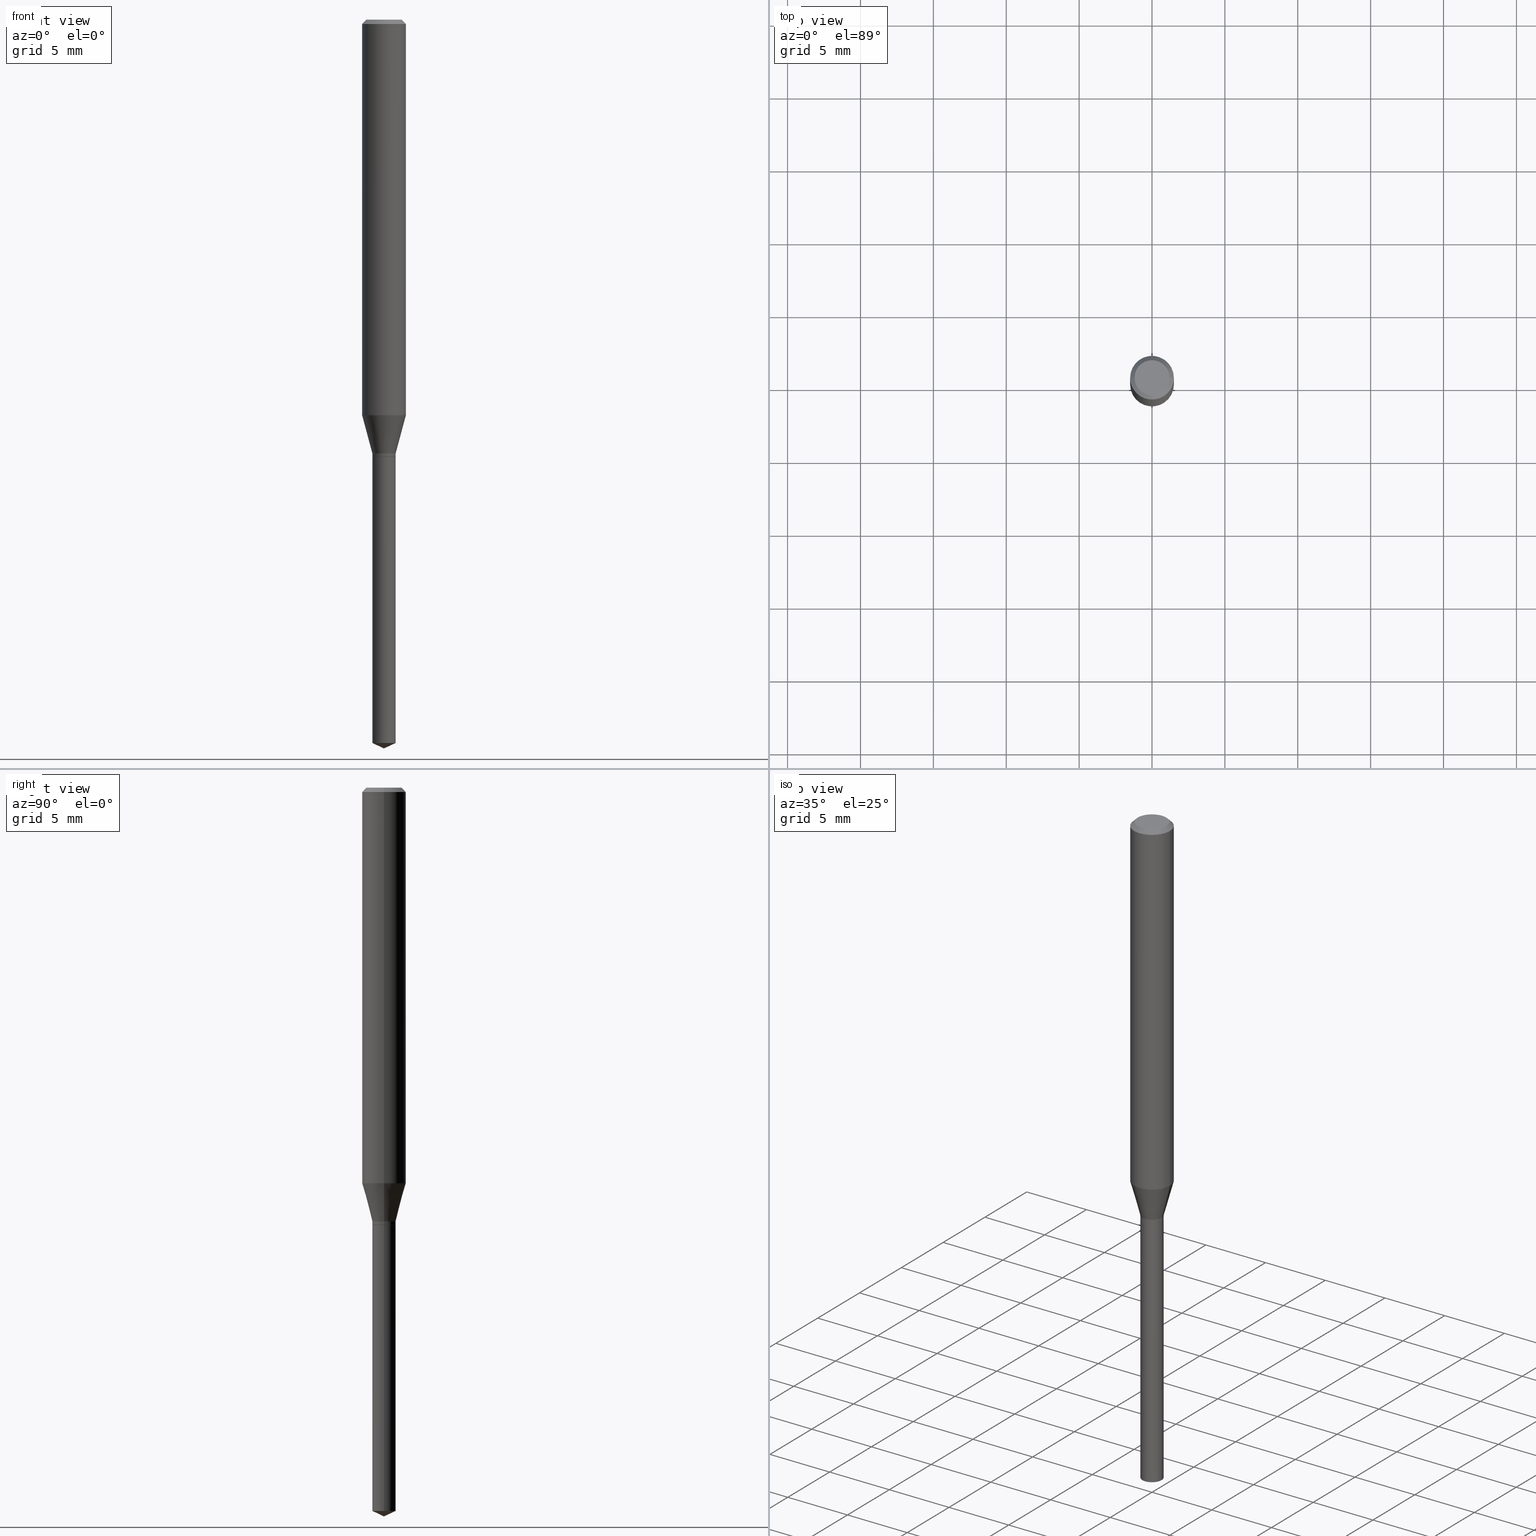
[diagram: canonical four-view strip — front | top / right | iso, engineering-drawing reading convention]
A machine part, canonical four-view strip (front | top / right | iso — engineering-drawing reading convention). The complete STEP part file that produces these views, byte-faithful:
ISO-10303-21;
HEADER;
FILE_DESCRIPTION (( 'STEP AP203' ),
    '1' );
FILE_NAME ('07897.STEP',
    '2024-04-24T05:38:02',
    ( '' ),
    ( '' ),
    'SwSTEP 2.0',
    'SolidWorks 2023',
    '' );
FILE_SCHEMA (( 'CONFIG_CONTROL_DESIGN' ));
ENDSEC;

DATA;
#1 = APPLICATION_CONTEXT ( 'configuration controlled 3d designs of mechanical parts and assemblies' ) ;
#2 = CARTESIAN_POINT ( 'NONE',  ( 0.05905000000000011628, -4.143976355286858032E-15, -1.068782000251477182 ) ) ;
#3 =( NAMED_UNIT ( * ) PLANE_ANGLE_UNIT ( ) SI_UNIT ( $, .RADIAN. ) );
#4 = DIRECTION ( 'NONE',  ( -2.445468806185136597E-29, 3.491481338843145583E-15, 1.000000000000000000 ) ) ;
#5 = LENGTH_MEASURE_WITH_UNIT ( LENGTH_MEASURE( 0.02539999999999999897 ), #284 );
#6 = ORIENTED_EDGE ( 'NONE', *, *, #53, .F. ) ;
#7 = DIRECTION ( 'NONE',  ( 1.000000000000000000, -6.982962677686270655E-15, 0.000000000000000000 ) ) ;
#8 = CLOSED_SHELL ( 'NONE', ( #138, #463, #12, #231, #189, #472, #269, #146, #275, #460, #445, #164 ) ) ;
#9 = APPROVAL_DATE_TIME ( #239, #309 ) ;
#10 = VERTEX_POINT ( 'NONE', #104 ) ;
#11 = CONICAL_SURFACE ( 'NONE', #74, 0.03150000000000000716, 0.2617993877991501295 ) ;
#12 = ADVANCED_FACE ( 'NONE', ( #293 ), #52, .T. ) ;
#13 = DIRECTION ( 'NONE',  ( 1.000000000000000000, -6.982962677686269077E-15, 0.000000000000000000 ) ) ;
#14 = APPROVAL_ROLE ( '' ) ;
#15 = ORIENTED_EDGE ( 'NONE', *, *, #384, .F. ) ;
#16 = DIRECTION ( 'NONE',  ( 1.000000000000000000, -6.982962677686266711E-15, 0.000000000000000000 ) ) ;
#17 = VERTEX_POINT ( 'NONE', #446 ) ;
#18 = CC_DESIGN_APPROVAL ( #309, ( #401 ) ) ;
#19 = DIRECTION ( 'NONE',  ( -2.445468806185136597E-29, 3.491481338843145583E-15, 1.000000000000000000 ) ) ;
#20 = COORDINATED_UNIVERSAL_TIME_OFFSET ( 5, 0, .BEHIND. ) ;
#21 = CARTESIAN_POINT ( 'NONE',  ( 0.03099999999999999978, -4.340260452315913355E-15, -1.181099999999999817 ) ) ;
#22 = CARTESIAN_POINT ( 'NONE',  ( -9.146439411113230710E-28, 1.305869142145323662E-13, 37.40157874015748263 ) ) ;
#23 = APPROVAL_DATE_TIME ( #440, #184 ) ;
#24 = FACE_OUTER_BOUND ( 'NONE', #86, .T. ) ;
#25 = PERSON_AND_ORGANIZATION_ROLE ( 'classification_officer' ) ;
#26 = CARTESIAN_POINT ( 'NONE',  ( -0.05904999999999999832, -1.466857916424269744E-15, -0.01181000000000007044 ) ) ;
#27 = VECTOR ( 'NONE', #158, 39.37007874015748854 ) ;
#28 = DATE_AND_TIME ( #258, #341 ) ;
#29 = ORIENTED_EDGE ( 'NONE', *, *, #279, .T. ) ;
#30 = VERTEX_POINT ( 'NONE', #140 ) ;
#31 = CIRCLE ( 'NONE', #486, 0.03150000000000000716 ) ;
#32 = ADVANCED_FACE ( 'NONE', ( #411 ), #332, .T. ) ;
#33 = FACE_OUTER_BOUND ( 'NONE', #467, .T. ) ;
#34 = AXIS2_PLACEMENT_3D ( 'NONE', #207, #292, #266 ) ;
#35 = DIRECTION ( 'NONE',  ( 1.000000000000000000, -6.982962677686270655E-15, 0.000000000000000000 ) ) ;
#36 = CONICAL_SURFACE ( 'NONE', #333, 84.42940631927592676, 1.134464013796323112 ) ;
#37 = ORIENTED_EDGE ( 'NONE', *, *, #448, .F. ) ;
#38 = EDGE_CURVE ( 'NONE', #483, #240, #469, .T. ) ;
#39 = EDGE_LOOP ( 'NONE', ( #75, #55 ) ) ;
#40 = DIRECTION ( 'NONE',  ( -2.445468806185136597E-29, 3.491481338843145583E-15, 1.000000000000000000 ) ) ;
#41 = EDGE_LOOP ( 'NONE', ( #464, #431, #427, #103 ) ) ;
#42 = DIRECTION ( 'NONE',  ( -2.445468806185136877E-29, 3.491481338843145188E-15, 1.000000000000000000 ) ) ;
#43 = CALENDAR_DATE ( 2024, 24, 4 ) ;
#44 = EDGE_LOOP ( 'NONE', ( #261, #99 ) ) ;
#45 = AXIS2_PLACEMENT_3D ( 'NONE', #120, #278, #436 ) ;
#46 = DIRECTION ( 'NONE',  ( -2.445468806185136597E-29, 3.491481338843145583E-15, 1.000000000000000000 ) ) ;
#47 = ORIENTED_EDGE ( 'NONE', *, *, #392, .F. ) ;
#48 = DIRECTION ( 'NONE',  ( 0.7071067811865453523, -7.319954787623248157E-15, -0.7071067811865496822 ) ) ;
#49 = DIRECTION ( 'NONE',  ( 1.000000000000000000, -6.982962677686270655E-15, 0.000000000000000000 ) ) ;
#50 = ADVANCED_FACE ( 'NONE', ( #24 ), #36, .T. ) ;
#51 = CIRCLE ( 'NONE', #114, 0.03150000000000000022 ) ;
#52 = CYLINDRICAL_SURFACE ( 'NONE', #131, 0.05905000000000006771 ) ;
#53 = EDGE_CURVE ( 'NONE', #305, #444, #136, .T. ) ;
#54 = CARTESIAN_POINT ( 'NONE',  ( 0.000000000000000000, 0.000000000000000000, 0.000000000000000000 ) ) ;
#55 = ORIENTED_EDGE ( 'NONE', *, *, #225, .F. ) ;
#56 = COORDINATED_UNIVERSAL_TIME_OFFSET ( 5, 0, .BEHIND. ) ;
#57 = DIRECTION ( 'NONE',  ( -2.438088387897960049E-29, 3.491481338843145188E-15, 1.000000000000000000 ) ) ;
#58 = EDGE_LOOP ( 'NONE', ( #203, #111 ) ) ;
#59 = PERSON_AND_ORGANIZATION_ROLE ( 'creator' ) ;
#60 = FACE_OUTER_BOUND ( 'NONE', #44, .T. ) ;
#61 = ORIENTED_EDGE ( 'NONE', *, *, #53, .T. ) ;
#62 = AXIS2_PLACEMENT_3D ( 'NONE', #452, #386, #383 ) ;
#63 = FACE_OUTER_BOUND ( 'NONE', #473, .T. ) ;
#64 = CARTESIAN_POINT ( 'NONE',  ( -0.03150000000000000716, -3.866798574824197516E-15, -1.171599999999999975 ) ) ;
#65 = DIRECTION ( 'NONE',  ( -2.445468806185136597E-29, 3.491481338843145583E-15, 1.000000000000000000 ) ) ;
#66 = EDGE_CURVE ( 'NONE', #400, #483, #130, .T. ) ;
#67 = VECTOR ( 'NONE', #42, 39.37007874015748143 ) ;
#68 = ORIENTED_EDGE ( 'NONE', *, *, #70, .T. ) ;
#69 = DIRECTION ( 'NONE',  ( 1.000000000000000000, -6.982962677686266711E-15, 4.876176775795936353E-29 ) ) ;
#70 = EDGE_CURVE ( 'NONE', #119, #305, #387, .T. ) ;
#71 = CARTESIAN_POINT ( 'NONE',  ( -0.04724000000000000421, 3.504923541997677355E-16, -3.380025165670481712E-19 ) ) ;
#72 = PRODUCT_DEFINITION_FORMATION_WITH_SPECIFIED_SOURCE ( 'ANY', '', #227, .NOT_KNOWN. ) ;
#73 = DIRECTION ( 'NONE',  ( 1.000000000000000000, -6.982962677686266711E-15, 4.876185090822587894E-29 ) ) ;
#74 = AXIS2_PLACEMENT_3D ( 'NONE', #395, #19, #161 ) ;
#75 = ORIENTED_EDGE ( 'NONE', *, *, #109, .F. ) ;
#76 = DIRECTION ( 'NONE',  ( -2.445468806185136597E-29, 3.491481338843145583E-15, 1.000000000000000000 ) ) ;
#77 = EDGE_CURVE ( 'NONE', #297, #400, #414, .T. ) ;
#78 = EDGE_LOOP ( 'NONE', ( #324, #396, #488 ) ) ;
#79 = COORDINATED_UNIVERSAL_TIME_OFFSET ( 5, 0, .BEHIND. ) ;
#80 = EDGE_LOOP ( 'NONE', ( #435, #354, #336, #15 ) ) ;
#81 = CARTESIAN_POINT ( 'NONE',  ( 2.888098660104663766E-31, -4.123439461173779647E-17, -0.01181000000000007044 ) ) ;
#82 = CONICAL_SURFACE ( 'NONE', #94, 0.05904999999999999832, 0.7853981633974452814 ) ;
#83 = DATE_TIME_ROLE ( 'creation_date' ) ;
#84 = EDGE_LOOP ( 'NONE', ( #393, #201, #29, #47 ) ) ;
#85 = DIRECTION ( 'NONE',  ( 1.000000000000000000, -6.982962677686270655E-15, 0.000000000000000000 ) ) ;
#86 = EDGE_LOOP ( 'NONE', ( #123, #160, #285 ) ) ;
#87 = AXIS2_PLACEMENT_3D ( 'NONE', #432, #40, #85 ) ;
#88 = DIRECTION ( 'NONE',  ( 2.445468806185136597E-29, -3.491481338843145583E-15, -1.000000000000000000 ) ) ;
#89 = UNCERTAINTY_MEASURE_WITH_UNIT (LENGTH_MEASURE( 1.000000000000000082E-05 ), #202, 'distance_accuracy_value', 'NONE');
#90 = VERTEX_POINT ( 'NONE', #331 ) ;
#91 = EDGE_CURVE ( 'NONE', #314, #121, #232, .T. ) ;
#92 = CARTESIAN_POINT ( 'NONE',  ( 4.777984608764188742E-29, -6.821695724184587194E-15, -1.953811308768117927 ) ) ;
#93 = PERSON_AND_ORGANIZATION ( #175, #322 ) ;
#94 = AXIS2_PLACEMENT_3D ( 'NONE', #441, #97, #413 ) ;
#95 = DIRECTION ( 'NONE',  ( -0.9063077870366536004, 7.915267918739013053E-15, 0.4226182617406913367 ) ) ;
#96 = AXIS2_PLACEMENT_3D ( 'NONE', #415, #419, #69 ) ;
#97 = DIRECTION ( 'NONE',  ( 2.445468806185136597E-29, -3.491481338843145583E-15, -1.000000000000000000 ) ) ;
#98 = VECTOR ( 'NONE', #224, 39.37007874015748854 ) ;
#99 = ORIENTED_EDGE ( 'NONE', *, *, #384, .T. ) ;
#100 = ORIENTED_EDGE ( 'NONE', *, *, #162, .T. ) ;
#101 = VERTEX_POINT ( 'NONE', #183 ) ;
#102 = PLANE ( 'NONE',  #34 ) ;
#103 = ORIENTED_EDGE ( 'NONE', *, *, #38, .T. ) ;
#104 = CARTESIAN_POINT ( 'NONE',  ( -0.03150000000000000022, -5.248921204981680958E-15, -1.181099999999999817 ) ) ;
#105 = FACE_OUTER_BOUND ( 'NONE', #358, .T. ) ;
#106 = AXIS2_PLACEMENT_3D ( 'NONE', #54, #208, #177 ) ;
#107 = VECTOR ( 'NONE', #165, 39.37007874015747433 ) ;
#108 = AXIS2_PLACEMENT_3D ( 'NONE', #470, #325, #49 ) ;
#109 = EDGE_CURVE ( 'NONE', #318, #101, #485, .T. ) ;
#110 = MANIFOLD_SOLID_BREP ( 'Body-Move/Copy2[2]', #8 ) ;
#111 = ORIENTED_EDGE ( 'NONE', *, *, #91, .T. ) ;
#112 = CONICAL_SURFACE ( 'NONE', #447, 84.42940631927592676, 1.134464013796323112 ) ;
#113 = PERSON_AND_ORGANIZATION ( #175, #322 ) ;
#114 = AXIS2_PLACEMENT_3D ( 'NONE', #92, #192, #359 ) ;
#115 = CALENDAR_DATE ( 2024, 24, 4 ) ;
#116 = ORIENTED_EDGE ( 'NONE', *, *, #364, .T. ) ;
#117 = CARTESIAN_POINT ( 'NONE',  ( -0.03099999999999999978, -3.903520361222007771E-15, -1.181099999999999817 ) ) ;
#118 = PERSON_AND_ORGANIZATION_ROLE ( 'creator' ) ;
#119 = VERTEX_POINT ( 'NONE', #420 ) ;
#120 = CARTESIAN_POINT ( 'NONE',  ( 2.613673042227141951E-29, -3.731632409169482323E-15, -1.068782000251477182 ) ) ;
#121 = VERTEX_POINT ( 'NONE', #71 ) ;
#122 = DIRECTION ( 'NONE',  ( -1.000000000000000000, 6.982962677686266711E-15, 0.000000000000000000 ) ) ;
#123 = ORIENTED_EDGE ( 'NONE', *, *, #479, .F. ) ;
#124 = CONICAL_SURFACE ( 'NONE', #458, 0.05904999999999999832, 0.7853981633974452814 ) ;
#125 = LINE ( 'NONE', #205, #67 ) ;
#126 = CC_DESIGN_PERSON_AND_ORGANIZATION_ASSIGNMENT ( #173, #59, ( #72 ) ) ;
#127 = DIRECTION ( 'NONE',  ( -2.445468806185136597E-29, 3.491481338843145583E-15, 1.000000000000000000 ) ) ;
#128 = PERSON_AND_ORGANIZATION ( #175, #322 ) ;
#129 = APPROVAL_PERSON_ORGANIZATION ( #243, #370, #14 ) ;
#130 = LINE ( 'NONE', #137, #294 ) ;
#131 = AXIS2_PLACEMENT_3D ( 'NONE', #209, #372, #366 ) ;
#132 = FACE_OUTER_BOUND ( 'NONE', #84, .T. ) ;
#133 = VECTOR ( 'NONE', #241, 39.37007874015748854 ) ;
#134 = CC_DESIGN_DATE_AND_TIME_ASSIGNMENT ( #169, #481, ( #422 ) ) ;
#135 = DIRECTION ( 'NONE',  ( -2.445468806185136877E-29, 3.491481338843145188E-15, 1.000000000000000000 ) ) ;
#136 = LINE ( 'NONE', #484, #326 ) ;
#137 = CARTESIAN_POINT ( 'NONE',  ( -0.05905000000000006771, 4.195754854663396409E-16, -2.904631170795525045E-30 ) ) ;
#138 = ADVANCED_FACE ( 'NONE', ( #229 ), #424, .T. ) ;
#139 = AXIS2_PLACEMENT_3D ( 'NONE', #475, #477, #213 ) ;
#140 = CARTESIAN_POINT ( 'NONE',  ( 0.03150000000000000022, -4.343751933654756363E-15, -1.181099999999999817 ) ) ;
#141 = CARTESIAN_POINT ( 'NONE',  ( 2.888343206985264877E-29, -4.123788609307639024E-15, -1.181099999999999817 ) ) ;
#142 = LOCAL_TIME ( 1, 38, 2.000000000000000000, #280 ) ;
#143 = ORIENTED_EDGE ( 'NONE', *, *, #199, .F. ) ;
#144 = LINE ( 'NONE', #456, #216 ) ;
#145 = CARTESIAN_POINT ( 'NONE',  ( 0.03099999999999999978, -4.340260452315913355E-15, -1.181099999999999817 ) ) ;
#146 = ADVANCED_FACE ( 'NONE', ( #270 ), #226, .T. ) ;
#147 = EDGE_CURVE ( 'NONE', #153, #400, #398, .T. ) ;
#148 = PERSON_AND_ORGANIZATION ( #175, #322 ) ;
#149 = ORIENTED_EDGE ( 'NONE', *, *, #279, .F. ) ;
#150 = CARTESIAN_POINT ( 'NONE',  ( 0.05904999999999999832, -4.535783407291118600E-16, -0.01181000000000007044 ) ) ;
#151 = AXIS2_PLACEMENT_3D ( 'NONE', #327, #46, #426 ) ;
#152 = PERSON_AND_ORGANIZATION ( #175, #322 ) ;
#153 = VERTEX_POINT ( 'NONE', #2 ) ;
#154 = CC_DESIGN_PERSON_AND_ORGANIZATION_ASSIGNMENT ( #334, #214, ( #72 ) ) ;
#155 = CARTESIAN_POINT ( 'NONE',  ( 2.888343206985264877E-29, -4.123788609307639024E-15, -1.181099999999999817 ) ) ;
#156 =( NAMED_UNIT ( * ) SI_UNIT ( $, .STERADIAN. ) SOLID_ANGLE_UNIT ( ) );
#157 = ORIENTED_EDGE ( 'NONE', *, *, #290, .F. ) ;
#158 = DIRECTION ( 'NONE',  ( 0.9063077870366536004, -4.853149677051433221E-15, 0.4226182617406913367 ) ) ;
#159 = CC_DESIGN_PERSON_AND_ORGANIZATION_ASSIGNMENT ( #113, #193, ( #227 ) ) ;
#160 = ORIENTED_EDGE ( 'NONE', *, *, #298, .T. ) ;
#161 = DIRECTION ( 'NONE',  ( 1.000000000000000000, -6.982962677686269077E-15, 0.000000000000000000 ) ) ;
#162 = EDGE_CURVE ( 'NONE', #444, #297, #399, .T. ) ;
#163 = CARTESIAN_POINT ( 'NONE',  ( 2.865111253326506133E-29, -4.090619536588628879E-15, -1.171599999999999975 ) ) ;
#164 = ADVANCED_FACE ( 'NONE', ( #105 ), #276, .T. ) ;
#165 = DIRECTION ( 'NONE',  ( -0.2588190451025214611, 5.211531920934551042E-15, 0.9659258262890682012 ) ) ;
#166 = FACE_OUTER_BOUND ( 'NONE', #39, .T. ) ;
#167 = VERTEX_POINT ( 'NONE', #388 ) ;
#168 = DESIGN_CONTEXT ( 'detailed design', #421, 'design' ) ;
#169 = DATE_AND_TIME ( #471, #223 ) ;
#170 = DIRECTION ( 'NONE',  ( 2.438088387897960049E-29, -3.491481338843145188E-15, -1.000000000000000000 ) ) ;
#171 = AXIS2_PLACEMENT_3D ( 'NONE', #344, #311, #35 ) ;
#172 = DIRECTION ( 'NONE',  ( -2.445468806185136597E-29, 3.491481338843145583E-15, 1.000000000000000000 ) ) ;
#173 = PERSON_AND_ORGANIZATION ( #175, #322 ) ;
#174 = LINE ( 'NONE', #474, #262 ) ;
#175 = PERSON ( 'UNSPECIFIED', 'UNSPECIFIED', 'UNSPECIFIED', ('UNSPECIFIED'), ('UNSPECIFIED'), ('UNSPECIFIED') ) ;
#176 = ORIENTED_EDGE ( 'NONE', *, *, #66, .F. ) ;
#177 = DIRECTION ( 'NONE',  ( 1.000000000000000000, -6.982962677686266711E-15, 4.876176775795936353E-29 ) ) ;
#178 = CARTESIAN_POINT ( 'NONE',  ( 2.888098660104663766E-31, -4.123439461173779647E-17, -0.01181000000000007044 ) ) ;
#179 = EDGE_CURVE ( 'NONE', #318, #305, #454, .T. ) ;
#180 = CIRCLE ( 'NONE', #363, 0.05904999999999999832 ) ;
#181 = LINE ( 'NONE', #228, #295 ) ;
#182 = EDGE_CURVE ( 'NONE', #444, #153, #144, .T. ) ;
#183 = CARTESIAN_POINT ( 'NONE',  ( -0.03099999999999999978, -3.900871134047896570E-15, -1.181099999999999817 ) ) ;
#184 = APPROVAL ( #253, 'UNSPECIFIED' ) ;
#185 = FACE_OUTER_BOUND ( 'NONE', #80, .T. ) ;
#186 = APPROVAL_PERSON_ORGANIZATION ( #93, #184, #210 ) ;
#187 = DIRECTION ( 'NONE',  ( -2.445468806185136597E-29, 3.491481338843145583E-15, 1.000000000000000000 ) ) ;
#188 = DIRECTION ( 'NONE',  ( 0.2588190451025214611, 1.565188264969621573E-15, 0.9659258262890682012 ) ) ;
#189 = ADVANCED_FACE ( 'NONE', ( #33 ), #350, .T. ) ;
#190 = APPLICATION_PROTOCOL_DEFINITION ( 'international standard', 'config_control_design', 1994, #1 ) ;
#191 = ORIENTED_EDGE ( 'NONE', *, *, #222, .F. ) ;
#192 = DIRECTION ( 'NONE',  ( -2.445468806185136597E-29, 3.491481338843145583E-15, 1.000000000000000000 ) ) ;
#193 = PERSON_AND_ORGANIZATION_ROLE ( 'design_owner' ) ;
#194 = ORIENTED_EDGE ( 'NONE', *, *, #147, .T. ) ;
#195 = CARTESIAN_POINT ( 'NONE',  ( -0.03150000000000000716, -3.882510240848991048E-15, -1.171599999999999975 ) ) ;
#196 = AXIS2_PLACEMENT_3D ( 'NONE', #375, #170, #302 ) ;
#197 = DIRECTION ( 'NONE',  ( 1.000000000000000000, 0.000000000000000000, 0.000000000000000000 ) ) ;
#198 = ORIENTED_EDGE ( 'NONE', *, *, #448, .T. ) ;
#199 = EDGE_CURVE ( 'NONE', #119, #297, #181, .T. ) ;
#200 = DIRECTION ( 'NONE',  ( -2.445468806185136597E-29, 3.491481338843145583E-15, 1.000000000000000000 ) ) ;
#201 = ORIENTED_EDGE ( 'NONE', *, *, #242, .T. ) ;
#202 =( CONVERSION_BASED_UNIT ( 'INCH', #5 ) LENGTH_UNIT ( ) NAMED_UNIT ( #257 ) );
#203 = ORIENTED_EDGE ( 'NONE', *, *, #487, .T. ) ;
#204 = DIRECTION ( 'NONE',  ( -2.445468806185136597E-29, 3.491481338843145583E-15, 1.000000000000000000 ) ) ;
#205 = CARTESIAN_POINT ( 'NONE',  ( 0.03150000000000000022, -4.343751933654756363E-15, -1.181099999999999817 ) ) ;
#206 = VECTOR ( 'NONE', #362, 39.37007874015748143 ) ;
#207 = CARTESIAN_POINT ( 'NONE',  ( 4.132873053354867254E-48, -5.900647395337818946E-34, -1.690012582823346072E-19 ) ) ;
#208 = DIRECTION ( 'NONE',  ( -2.445468806185136597E-29, 3.491481338843145583E-15, 1.000000000000000000 ) ) ;
#209 = CARTESIAN_POINT ( 'NONE',  ( 0.000000000000000000, 0.000000000000000000, 0.000000000000000000 ) ) ;
#210 = APPROVAL_ROLE ( '' ) ;
#211 = CIRCLE ( 'NONE', #404, 0.04724000000000000421 ) ;
#212 = ADVANCED_FACE ( 'NONE', ( #185 ), #346, .T. ) ;
#213 = DIRECTION ( 'NONE',  ( 1.000000000000000000, -6.982962677686270655E-15, 0.000000000000000000 ) ) ;
#214 = PERSON_AND_ORGANIZATION_ROLE ( 'design_supplier' ) ;
#215 = PLANE ( 'NONE',  #271 ) ;
#216 = VECTOR ( 'NONE', #188, 39.37007874015747433 ) ;
#217 = CC_DESIGN_PERSON_AND_ORGANIZATION_ASSIGNMENT ( #152, #118, ( #401 ) ) ;
#218 = DIRECTION ( 'NONE',  ( -2.445468806185136877E-29, 3.491481338843145188E-15, 1.000000000000000000 ) ) ;
#219 = PRODUCT_DEFINITION_SHAPE ( 'NONE', 'NONE',  #401 ) ;
#220 = ORIENTED_EDGE ( 'NONE', *, *, #377, .T. ) ;
#221 = PRODUCT_RELATED_PRODUCT_CATEGORY ( 'detail', '', ( #227 ) ) ;
#222 = EDGE_CURVE ( 'NONE', #400, #153, #373, .T. ) ;
#223 = LOCAL_TIME ( 1, 38, 2.000000000000000000, #20 ) ;
#224 = DIRECTION ( 'NONE',  ( 0.7071067811864326647, -2.468850131081054837E-15, 0.7071067811866621478 ) ) ;
#225 = EDGE_CURVE ( 'NONE', #101, #318, #443, .T. ) ;
#226 = CYLINDRICAL_SURFACE ( 'NONE', #96, 0.05905000000000006771 ) ;
#227 = PRODUCT ( '07897', '07897', '', ( #323 ) ) ;
#228 = CARTESIAN_POINT ( 'NONE',  ( -0.03150000000000000716, 2.238209617644316094E-16, -1.549464553430295852E-30 ) ) ;
#229 = FACE_OUTER_BOUND ( 'NONE', #237, .T. ) ;
#230 = DIRECTION ( 'NONE',  ( -2.445468806185136597E-29, 3.491481338843145583E-15, 1.000000000000000000 ) ) ;
#231 = ADVANCED_FACE ( 'NONE', ( #459 ), #381, .T. ) ;
#232 = CIRCLE ( 'NONE', #304, 0.04724000000000000421 ) ;
#233 = ORIENTED_EDGE ( 'NONE', *, *, #182, .F. ) ;
#234 = APPROVAL_STATUS ( 'not_yet_approved' ) ;
#235 = ORIENTED_EDGE ( 'NONE', *, *, #179, .T. ) ;
#236 = LINE ( 'NONE', #403, #206 ) ;
#237 = EDGE_LOOP ( 'NONE', ( #390, #288, #360, #249 ) ) ;
#238 = EDGE_CURVE ( 'NONE', #167, #90, #51, .T. ) ;
#239 = DATE_AND_TIME ( #115, #453 ) ;
#240 = VERTEX_POINT ( 'NONE', #150 ) ;
#241 = DIRECTION ( 'NONE',  ( -0.7071067811864326647, 7.493145998869937642E-15, 0.7071067811866621478 ) ) ;
#242 = EDGE_CURVE ( 'NONE', #314, #240, #352, .T. ) ;
#243 = PERSON_AND_ORGANIZATION ( #175, #322 ) ;
#244 = ORIENTED_EDGE ( 'NONE', *, *, #77, .T. ) ;
#245 = LINE ( 'NONE', #397, #418 ) ;
#246 = AXIS2_PLACEMENT_3D ( 'NONE', #155, #286, #7 ) ;
#247 = ORIENTED_EDGE ( 'NONE', *, *, #70, .F. ) ;
#248 = DIRECTION ( 'NONE',  ( -2.445468806185136597E-29, 3.491481338843145583E-15, 1.000000000000000000 ) ) ;
#249 = ORIENTED_EDGE ( 'NONE', *, *, #179, .F. ) ;
#250 = DIRECTION ( 'NONE',  ( 1.000000000000000000, -6.982962677686270655E-15, 0.000000000000000000 ) ) ;
#251 = EDGE_CURVE ( 'NONE', #101, #119, #361, .T. ) ;
#252 = CC_DESIGN_APPROVAL ( #370, ( #72 ) ) ;
#253 = APPROVAL_STATUS ( 'not_yet_approved' ) ;
#254 = CARTESIAN_POINT ( 'NONE',  ( 8.265746106709734507E-48, -1.180129479067563789E-33, -3.380025165646692144E-19 ) ) ;
#255 = AXIS2_PLACEMENT_3D ( 'NONE', #141, #4, #455 ) ;
#256 = CIRCLE ( 'NONE', #108, 0.03150000000000000022 ) ;
#257 = DIMENSIONAL_EXPONENTS ( 1.000000000000000000, 0.000000000000000000, 0.000000000000000000, 0.000000000000000000, 0.000000000000000000, 0.000000000000000000, 0.000000000000000000 ) ;
#258 = CALENDAR_DATE ( 2024, 24, 4 ) ;
#259 = EDGE_LOOP ( 'NONE', ( #442, #116, #351, #157 ) ) ;
#260 = DIRECTION ( 'NONE',  ( -2.445468806185136597E-29, 3.491481338843145583E-15, 1.000000000000000000 ) ) ;
#261 = ORIENTED_EDGE ( 'NONE', *, *, #329, .T. ) ;
#262 = VECTOR ( 'NONE', #135, 39.37007874015748143 ) ;
#263 = CARTESIAN_POINT ( 'NONE',  ( -9.146439411113230710E-28, 1.305869142145323662E-13, 37.40157874015748263 ) ) ;
#264 = CALENDAR_DATE ( 2024, 24, 4 ) ;
#265 = AXIS2_PLACEMENT_3D ( 'NONE', #178, #340, #368 ) ;
#266 = DIRECTION ( 'NONE',  ( -1.000000000000000000, 6.982962677686265922E-15, -4.876176775795935793E-29 ) ) ;
#267 = DIRECTION ( 'NONE',  ( 1.000000000000000000, -6.982962677686269077E-15, 0.000000000000000000 ) ) ;
#268 = EDGE_LOOP ( 'NONE', ( #194, #310, #149, #37 ) ) ;
#269 = ADVANCED_FACE ( 'NONE', ( #429 ), #11, .T. ) ;
#270 = FACE_OUTER_BOUND ( 'NONE', #428, .T. ) ;
#271 = AXIS2_PLACEMENT_3D ( 'NONE', #374, #57, #476 ) ;
#272 = CARTESIAN_POINT ( 'NONE',  ( 8.265746106709734507E-48, -1.180129479067563789E-33, -3.380025165646692144E-19 ) ) ;
#273 = FACE_OUTER_BOUND ( 'NONE', #41, .T. ) ;
#274 = CLOSED_SHELL ( 'NONE', ( #32, #439, #50, #212, #417 ) ) ;
#275 = ADVANCED_FACE ( 'NONE', ( #273 ), #124, .T. ) ;
#276 = CONICAL_SURFACE ( 'NONE', #171, 0.03099999999999999978, 0.7853981633972860754 ) ;
#277 = ORIENTED_EDGE ( 'NONE', *, *, #38, .F. ) ;
#278 = DIRECTION ( 'NONE',  ( -2.445468806185136597E-29, 3.491481338843145583E-15, 1.000000000000000000 ) ) ;
#279 = EDGE_CURVE ( 'NONE', #240, #483, #180, .T. ) ;
#280 = COORDINATED_UNIVERSAL_TIME_OFFSET ( 5, 0, .BEHIND. ) ;
#281 = ORIENTED_EDGE ( 'NONE', *, *, #162, .F. ) ;
#282 = MANIFOLD_SOLID_BREP ( 'Body-Move/Copy2[1]', #274 ) ;
#283 = CARTESIAN_POINT ( 'NONE',  ( 0.03150000000000000716, -4.342006192985334070E-15, -1.180599999999999650 ) ) ;
#284 =( LENGTH_UNIT ( ) NAMED_UNIT ( * ) SI_UNIT ( $, .METRE. ) );
#285 = ORIENTED_EDGE ( 'NONE', *, *, #380, .F. ) ;
#286 = DIRECTION ( 'NONE',  ( -2.445468806185136597E-29, 3.491481338843145583E-15, 1.000000000000000000 ) ) ;
#287 = AXIS2_PLACEMENT_3D ( 'NONE', #489, #65, #378 ) ;
#288 = ORIENTED_EDGE ( 'NONE', *, *, #251, .T. ) ;
#289 = LINE ( 'NONE', #355, #27 ) ;
#290 = EDGE_CURVE ( 'NONE', #167, #30, #125, .T. ) ;
#291 = CC_DESIGN_APPROVAL ( #184, ( #422 ) ) ;
#292 = DIRECTION ( 'NONE',  ( 2.438088387897960049E-29, -3.491481338843145188E-15, -1.000000000000000000 ) ) ;
#293 = FACE_OUTER_BOUND ( 'NONE', #268, .T. ) ;
#294 = VECTOR ( 'NONE', #218, 39.37007874015748143 ) ;
#295 = VECTOR ( 'NONE', #385, 39.37007874015748143 ) ;
#296 = LINE ( 'NONE', #437, #394 ) ;
#297 = VERTEX_POINT ( 'NONE', #195 ) ;
#298 = EDGE_CURVE ( 'NONE', #17, #167, #289, .T. ) ;
#299 = COORDINATED_UNIVERSAL_TIME_OFFSET ( 5, 0, .BEHIND. ) ;
#300 = CC_DESIGN_SECURITY_CLASSIFICATION ( #422, ( #72 ) ) ;
#301 =( GEOMETRIC_REPRESENTATION_CONTEXT ( 3 ) GLOBAL_UNCERTAINTY_ASSIGNED_CONTEXT ( ( #89 ) ) GLOBAL_UNIT_ASSIGNED_CONTEXT ( ( #202, #3, #156 ) ) REPRESENTATION_CONTEXT ( 'NONE', 'WORKASPACE' ) );
#302 = DIRECTION ( 'NONE',  ( -1.000000000000000000, 6.982962677686265922E-15, -4.876176775795935793E-29 ) ) ;
#303 = CARTESIAN_POINT ( 'NONE',  ( 2.887120472582171515E-29, -4.122042868638216732E-15, -1.180599999999999650 ) ) ;
#304 = AXIS2_PLACEMENT_3D ( 'NONE', #272, #416, #73 ) ;
#305 = VERTEX_POINT ( 'NONE', #283 ) ;
#306 = CC_DESIGN_PERSON_AND_ORGANIZATION_ASSIGNMENT ( #128, #25, ( #422 ) ) ;
#307 = AXIS2_PLACEMENT_3D ( 'NONE', #468, #76, #13 ) ;
#308 = CARTESIAN_POINT ( 'NONE',  ( 2.888343206985264877E-29, -4.123788609307639024E-15, -1.181099999999999817 ) ) ;
#309 = APPROVAL ( #234, 'UNSPECIFIED' ) ;
#310 = ORIENTED_EDGE ( 'NONE', *, *, #66, .T. ) ;
#311 = DIRECTION ( 'NONE',  ( -2.445468806185136597E-29, 3.491481338843145583E-15, 1.000000000000000000 ) ) ;
#312 = DIRECTION ( 'NONE',  ( 0.000000000000000000, 0.000000000000000000, 1.000000000000000000 ) ) ;
#313 = DIRECTION ( 'NONE',  ( 1.000000000000000000, -6.982962677686270655E-15, 0.000000000000000000 ) ) ;
#314 = VERTEX_POINT ( 'NONE', #319 ) ;
#315 = DIRECTION ( 'NONE',  ( -2.445468806185136597E-29, 3.491481338843145583E-15, 1.000000000000000000 ) ) ;
#316 = AXIS2_PLACEMENT_3D ( 'NONE', #423, #230, #313 ) ;
#317 = CIRCLE ( 'NONE', #151, 0.03150000000000000022 ) ;
#318 = VERTEX_POINT ( 'NONE', #21 ) ;
#319 = CARTESIAN_POINT ( 'NONE',  ( 0.04724000000000000421, -3.852183633974369345E-16, -3.380025165621689721E-19 ) ) ;
#320 = ORIENTED_EDGE ( 'NONE', *, *, #225, .T. ) ;
#321 = DIRECTION ( 'NONE',  ( -0.7071067811865453523, 2.468850131082234184E-15, -0.7071067811865496822 ) ) ;
#322 = ORGANIZATION ( 'UNSPECIFIED', 'UNSPECIFIED', '' ) ;
#323 = MECHANICAL_CONTEXT ( 'NONE', #1, 'mechanical' ) ;
#324 = ORIENTED_EDGE ( 'NONE', *, *, #298, .F. ) ;
#325 = DIRECTION ( 'NONE',  ( -2.445468806185136597E-29, 3.491481338843145583E-15, 1.000000000000000000 ) ) ;
#326 = VECTOR ( 'NONE', #376, 39.37007874015748143 ) ;
#327 = CARTESIAN_POINT ( 'NONE',  ( 4.777984608764188742E-29, -6.821695724184587194E-15, -1.953811308768117927 ) ) ;
#328 = SHAPE_DEFINITION_REPRESENTATION ( #219, #480 ) ;
#329 = EDGE_CURVE ( 'NONE', #30, #10, #256, .T. ) ;
#330 = DIRECTION ( 'NONE',  ( 1.000000000000000000, -6.982962677686265133E-15, 0.000000000000000000 ) ) ;
#331 = CARTESIAN_POINT ( 'NONE',  ( -0.03150000000000000716, -6.597874762420155043E-15, -1.953811308768117927 ) ) ;
#332 = CYLINDRICAL_SURFACE ( 'NONE', #139, 0.03150000000000000022 ) ;
#333 = AXIS2_PLACEMENT_3D ( 'NONE', #22, #172, #343 ) ;
#334 = PERSON_AND_ORGANIZATION ( #175, #322 ) ;
#335 = CARTESIAN_POINT ( 'NONE',  ( -0.05905000000000011628, -3.312056923703143225E-15, -1.068782000251477182 ) ) ;
#336 = ORIENTED_EDGE ( 'NONE', *, *, #290, .T. ) ;
#337 = CC_DESIGN_DATE_AND_TIME_ASSIGNMENT ( #430, #83, ( #401 ) ) ;
#338 = ORIENTED_EDGE ( 'NONE', *, *, #77, .F. ) ;
#339 = APPROVAL_DATE_TIME ( #28, #370 ) ;
#340 = DIRECTION ( 'NONE',  ( -2.445468806185136597E-29, 3.491481338843145583E-15, 1.000000000000000000 ) ) ;
#341 = LOCAL_TIME ( 1, 38, 2.000000000000000000, #299 ) ;
#342 = EDGE_CURVE ( 'NONE', #305, #119, #425, .T. ) ;
#343 = DIRECTION ( 'NONE',  ( 1.000000000000000000, -6.982962677686265133E-15, 0.000000000000000000 ) ) ;
#344 = CARTESIAN_POINT ( 'NONE',  ( 2.888343206985264877E-29, -4.123788609307639024E-15, -1.181099999999999817 ) ) ;
#345 = CARTESIAN_POINT ( 'NONE',  ( 2.613673042227141951E-29, -3.731632409169482323E-15, -1.068782000251477182 ) ) ;
#346 = CYLINDRICAL_SURFACE ( 'NONE', #347, 0.03150000000000000022 ) ;
#347 = AXIS2_PLACEMENT_3D ( 'NONE', #308, #204, #250 ) ;
#348 = DIRECTION ( 'NONE',  ( 1.000000000000000000, -6.982962677686265133E-15, 0.000000000000000000 ) ) ;
#349 = ORIENTED_EDGE ( 'NONE', *, *, #199, .T. ) ;
#350 = CYLINDRICAL_SURFACE ( 'NONE', #287, 0.03150000000000000716 ) ;
#351 = ORIENTED_EDGE ( 'NONE', *, *, #329, .F. ) ;
#352 = LINE ( 'NONE', #465, #406 ) ;
#353 = APPLICATION_PROTOCOL_DEFINITION ( 'international standard', 'config_control_design', 1994, #421 ) ;
#354 = ORIENTED_EDGE ( 'NONE', *, *, #380, .T. ) ;
#355 = CARTESIAN_POINT ( 'NONE',  ( 4.813905344975441835E-29, -6.872981015512731707E-15, -1.968500000000000139 ) ) ;
#356 = CIRCLE ( 'NONE', #87, 0.03150000000000000022 ) ;
#357 = APPROVAL_STATUS ( 'not_yet_approved' ) ;
#358 = EDGE_LOOP ( 'NONE', ( #409, #320, #235, #247 ) ) ;
#359 = DIRECTION ( 'NONE',  ( 1.000000000000000000, -6.982962677686255667E-15, 0.000000000000000000 ) ) ;
#360 = ORIENTED_EDGE ( 'NONE', *, *, #342, .F. ) ;
#361 = LINE ( 'NONE', #117, #133 ) ;
#362 = DIRECTION ( 'NONE',  ( -2.445468806185136877E-29, 3.491481338843145188E-15, 1.000000000000000000 ) ) ;
#363 = AXIS2_PLACEMENT_3D ( 'NONE', #391, #248, #16 ) ;
#364 = EDGE_CURVE ( 'NONE', #90, #10, #236, .T. ) ;
#365 = PLANE ( 'NONE',  #196 ) ;
#366 = DIRECTION ( 'NONE',  ( 1.000000000000000000, -6.982962677686266711E-15, 4.876176775795936353E-29 ) ) ;
#367 = CARTESIAN_POINT ( 'NONE',  ( 0.03150000000000000716, -4.310582860935747006E-15, -1.171599999999999975 ) ) ;
#368 = DIRECTION ( 'NONE',  ( 1.000000000000000000, -6.982962677686266711E-15, 0.000000000000000000 ) ) ;
#369 = LOCAL_TIME ( 1, 38, 2.000000000000000000, #56 ) ;
#370 = APPROVAL ( #357, 'UNSPECIFIED' ) ;
#371 = CYLINDRICAL_SURFACE ( 'NONE', #106, 0.03150000000000000716 ) ;
#372 = DIRECTION ( 'NONE',  ( -2.445468806185136597E-29, 3.491481338843145583E-15, 1.000000000000000000 ) ) ;
#373 = CIRCLE ( 'NONE', #45, 0.05905000000000013016 ) ;
#374 = CARTESIAN_POINT ( 'NONE',  ( -7.457095796704045074E-30, -9.327959037238060308E-15, -1.181099999999999817 ) ) ;
#375 = CARTESIAN_POINT ( 'NONE',  ( 6.464712616074970854E-29, 9.977759388143629204E-16, -1.181099999999999817 ) ) ;
#376 = DIRECTION ( 'NONE',  ( -2.445468806185136877E-29, 3.491481338843145188E-15, 1.000000000000000000 ) ) ;
#377 = EDGE_CURVE ( 'NONE', #297, #444, #31, .T. ) ;
#378 = DIRECTION ( 'NONE',  ( 1.000000000000000000, -6.982962677686266711E-15, 4.876176775795936353E-29 ) ) ;
#379 = AXIS2_PLACEMENT_3D ( 'NONE', #345, #187, #348 ) ;
#380 = EDGE_CURVE ( 'NONE', #90, #167, #317, .T. ) ;
#381 = CONICAL_SURFACE ( 'NONE', #412, 0.03150000000000000716, 0.2617993877991501295 ) ;
#382 = EDGE_LOOP ( 'NONE', ( #338, #220, #407, #191 ) ) ;
#383 = DIRECTION ( 'NONE',  ( 1.000000000000000000, -6.982962677686269077E-15, 0.000000000000000000 ) ) ;
#384 = EDGE_CURVE ( 'NONE', #10, #30, #356, .T. ) ;
#385 = DIRECTION ( 'NONE',  ( -2.445468806185136877E-29, 3.491481338843145188E-15, 1.000000000000000000 ) ) ;
#386 = DIRECTION ( 'NONE',  ( -2.445468806185136597E-29, 3.491481338843145583E-15, 1.000000000000000000 ) ) ;
#387 = CIRCLE ( 'NONE', #450, 0.03150000000000000716 ) ;
#388 = CARTESIAN_POINT ( 'NONE',  ( 0.03150000000000000716, -7.041659048531704533E-15, -1.953811308768117927 ) ) ;
#389 = APPROVAL_ROLE ( '' ) ;
#390 = ORIENTED_EDGE ( 'NONE', *, *, #109, .T. ) ;
#391 = CARTESIAN_POINT ( 'NONE',  ( 2.888098660104663766E-31, -4.123439461173779647E-17, -0.01181000000000007044 ) ) ;
#392 = EDGE_CURVE ( 'NONE', #121, #483, #245, .T. ) ;
#393 = ORIENTED_EDGE ( 'NONE', *, *, #91, .F. ) ;
#394 = VECTOR ( 'NONE', #95, 39.37007874015748854 ) ;
#395 = CARTESIAN_POINT ( 'NONE',  ( 2.865111253326506133E-29, -4.090619536588628879E-15, -1.171599999999999975 ) ) ;
#396 = ORIENTED_EDGE ( 'NONE', *, *, #479, .T. ) ;
#397 = CARTESIAN_POINT ( 'NONE',  ( -0.05904999999999999832, 3.711095515056362547E-16, -0.01181000000000007044 ) ) ;
#398 = CIRCLE ( 'NONE', #379, 0.05905000000000013016 ) ;
#399 = CIRCLE ( 'NONE', #62, 0.03150000000000000716 ) ;
#400 = VERTEX_POINT ( 'NONE', #335 ) ;
#401 = PRODUCT_DEFINITION ( 'UNKNOWN', '', #72, #168 ) ;
#402 = CARTESIAN_POINT ( 'NONE',  ( 2.865111253326506133E-29, -4.090619536588628879E-15, -1.171599999999999975 ) ) ;
#403 = CARTESIAN_POINT ( 'NONE',  ( -0.03150000000000000022, -3.899967647543207661E-15, -1.181099999999999817 ) ) ;
#404 = AXIS2_PLACEMENT_3D ( 'NONE', #254, #260, #405 ) ;
#405 = DIRECTION ( 'NONE',  ( 1.000000000000000000, -6.982962677686266711E-15, 4.876185090822587894E-29 ) ) ;
#406 = VECTOR ( 'NONE', #48, 39.37007874015748143 ) ;
#407 = ORIENTED_EDGE ( 'NONE', *, *, #182, .T. ) ;
#408 = FACE_OUTER_BOUND ( 'NONE', #78, .T. ) ;
#409 = ORIENTED_EDGE ( 'NONE', *, *, #251, .F. ) ;
#410 = SECURITY_CLASSIFICATION_LEVEL ( 'unclassified' ) ;
#411 = FACE_OUTER_BOUND ( 'NONE', #259, .T. ) ;
#412 = AXIS2_PLACEMENT_3D ( 'NONE', #402, #315, #434 ) ;
#413 = DIRECTION ( 'NONE',  ( -1.000000000000000000, 6.982962677686266711E-15, 0.000000000000000000 ) ) ;
#414 = LINE ( 'NONE', #64, #107 ) ;
#415 = CARTESIAN_POINT ( 'NONE',  ( 0.000000000000000000, 0.000000000000000000, 0.000000000000000000 ) ) ;
#416 = DIRECTION ( 'NONE',  ( -2.445468806185136597E-29, 3.491481338843145583E-15, 1.000000000000000000 ) ) ;
#417 = ADVANCED_FACE ( 'NONE', ( #60 ), #365, .F. ) ;
#418 = VECTOR ( 'NONE', #321, 39.37007874015748143 ) ;
#419 = DIRECTION ( 'NONE',  ( -2.445468806185136597E-29, 3.491481338843145583E-15, 1.000000000000000000 ) ) ;
#420 = CARTESIAN_POINT ( 'NONE',  ( -0.03150000000000000716, -3.882510240848991048E-15, -1.180599999999999650 ) ) ;
#421 = APPLICATION_CONTEXT ( 'configuration controlled 3d designs of mechanical parts and assemblies' ) ;
#422 = SECURITY_CLASSIFICATION ( '', '', #410 ) ;
#423 = CARTESIAN_POINT ( 'NONE',  ( 2.888343206985264877E-29, -4.123788609307639024E-15, -1.181099999999999817 ) ) ;
#424 = CONICAL_SURFACE ( 'NONE', #316, 0.03099999999999999978, 0.7853981633972860754 ) ;
#425 = CIRCLE ( 'NONE', #307, 0.03150000000000000716 ) ;
#426 = DIRECTION ( 'NONE',  ( 1.000000000000000000, -6.982962677686255667E-15, 0.000000000000000000 ) ) ;
#427 = ORIENTED_EDGE ( 'NONE', *, *, #392, .T. ) ;
#428 = EDGE_LOOP ( 'NONE', ( #176, #433, #198, #277 ) ) ;
#429 = FACE_OUTER_BOUND ( 'NONE', #382, .T. ) ;
#430 = DATE_AND_TIME ( #43, #142 ) ;
#431 = ORIENTED_EDGE ( 'NONE', *, *, #487, .F. ) ;
#432 = CARTESIAN_POINT ( 'NONE',  ( 2.888343206985264316E-29, -4.123788609307638235E-15, -1.181099999999999817 ) ) ;
#433 = ORIENTED_EDGE ( 'NONE', *, *, #222, .T. ) ;
#434 = DIRECTION ( 'NONE',  ( 1.000000000000000000, -6.982962677686269077E-15, 0.000000000000000000 ) ) ;
#435 = ORIENTED_EDGE ( 'NONE', *, *, #364, .F. ) ;
#436 = DIRECTION ( 'NONE',  ( 1.000000000000000000, -6.982962677686265133E-15, 0.000000000000000000 ) ) ;
#437 = CARTESIAN_POINT ( 'NONE',  ( 4.813905344975441835E-29, -6.872981015512731707E-15, -1.968500000000000139 ) ) ;
#438 = APPROVAL_PERSON_ORGANIZATION ( #148, #309, #389 ) ;
#439 = ADVANCED_FACE ( 'NONE', ( #408 ), #112, .T. ) ;
#440 = DATE_AND_TIME ( #264, #369 ) ;
#441 = CARTESIAN_POINT ( 'NONE',  ( 2.888098660104663766E-31, -4.123439461173779647E-17, -0.01181000000000007044 ) ) ;
#442 = ORIENTED_EDGE ( 'NONE', *, *, #238, .T. ) ;
#443 = CIRCLE ( 'NONE', #246, 0.03099999999999999978 ) ;
#444 = VERTEX_POINT ( 'NONE', #367 ) ;
#445 = ADVANCED_FACE ( 'NONE', ( #166 ), #215, .F. ) ;
#446 = CARTESIAN_POINT ( 'NONE',  ( 4.813905344975441835E-29, -6.872981015512731707E-15, -1.968500000000000139 ) ) ;
#447 = AXIS2_PLACEMENT_3D ( 'NONE', #263, #127, #330 ) ;
#448 = EDGE_CURVE ( 'NONE', #153, #240, #174, .T. ) ;
#449 = DIRECTION ( 'NONE',  ( -2.445468806185136597E-29, 3.491481338843145583E-15, 1.000000000000000000 ) ) ;
#450 = AXIS2_PLACEMENT_3D ( 'NONE', #303, #449, #267 ) ;
#451 = ORIENTED_EDGE ( 'NONE', *, *, #342, .T. ) ;
#452 = CARTESIAN_POINT ( 'NONE',  ( 2.865111253326506133E-29, -4.090619536588628879E-15, -1.171599999999999975 ) ) ;
#453 = LOCAL_TIME ( 1, 38, 2.000000000000000000, #79 ) ;
#454 = LINE ( 'NONE', #145, #98 ) ;
#455 = DIRECTION ( 'NONE',  ( 1.000000000000000000, -6.982962677686270655E-15, 0.000000000000000000 ) ) ;
#456 = CARTESIAN_POINT ( 'NONE',  ( 0.03150000000000000716, -4.310582860935747006E-15, -1.171599999999999975 ) ) ;
#457 = ORIENTED_EDGE ( 'NONE', *, *, #377, .F. ) ;
#458 = AXIS2_PLACEMENT_3D ( 'NONE', #81, #88, #122 ) ;
#459 = FACE_OUTER_BOUND ( 'NONE', #478, .T. ) ;
#460 = ADVANCED_FACE ( 'NONE', ( #482 ), #102, .F. ) ;
#461 = ORIENTED_EDGE ( 'NONE', *, *, #147, .F. ) ;
#462 = DIRECTION ( 'NONE',  ( 1.000000000000000000, -6.982962677686269077E-15, 0.000000000000000000 ) ) ;
#463 = ADVANCED_FACE ( 'NONE', ( #132 ), #82, .T. ) ;
#464 = ORIENTED_EDGE ( 'NONE', *, *, #242, .F. ) ;
#465 = CARTESIAN_POINT ( 'NONE',  ( 0.05904999999999999832, -4.463468013801466955E-16, -0.01181000000000007044 ) ) ;
#466 = CARTESIAN_POINT ( 'NONE',  ( 0.000000000000000000, 0.000000000000000000, 0.000000000000000000 ) ) ;
#467 = EDGE_LOOP ( 'NONE', ( #451, #349, #281, #6 ) ) ;
#468 = CARTESIAN_POINT ( 'NONE',  ( 2.887120472582171515E-29, -4.122042868638216732E-15, -1.180599999999999650 ) ) ;
#469 = CIRCLE ( 'NONE', #265, 0.05904999999999999832 ) ;
#470 = CARTESIAN_POINT ( 'NONE',  ( 2.888343206985264316E-29, -4.123788609307638235E-15, -1.181099999999999817 ) ) ;
#471 = CALENDAR_DATE ( 2024, 24, 4 ) ;
#472 = ADVANCED_FACE ( 'NONE', ( #63 ), #371, .T. ) ;
#473 = EDGE_LOOP ( 'NONE', ( #143, #68, #61, #457 ) ) ;
#474 = CARTESIAN_POINT ( 'NONE',  ( 0.05905000000000006771, -4.123439461173745257E-16, 2.879382386107503723E-30 ) ) ;
#475 = CARTESIAN_POINT ( 'NONE',  ( 2.888343206985264877E-29, -4.123788609307639024E-15, -1.181099999999999817 ) ) ;
#476 = DIRECTION ( 'NONE',  ( 1.000000000000000000, -6.982962677686265922E-15, 4.876176775795935793E-29 ) ) ;
#477 = DIRECTION ( 'NONE',  ( -2.445468806185136597E-29, 3.491481338843145583E-15, 1.000000000000000000 ) ) ;
#478 = EDGE_LOOP ( 'NONE', ( #100, #244, #461, #233 ) ) ;
#479 = EDGE_CURVE ( 'NONE', #17, #90, #296, .T. ) ;
#480 = ADVANCED_BREP_SHAPE_REPRESENTATION ( '07897', ( #282, #110, #490 ), #301 ) ;
#481 = DATE_TIME_ROLE ( 'classification_date' ) ;
#482 = FACE_OUTER_BOUND ( 'NONE', #58, .T. ) ;
#483 = VERTEX_POINT ( 'NONE', #26 ) ;
#484 = CARTESIAN_POINT ( 'NONE',  ( 0.03150000000000000716, -2.199633243471174615E-16, 1.535995684375720237E-30 ) ) ;
#485 = CIRCLE ( 'NONE', #255, 0.03099999999999999978 ) ;
#486 = AXIS2_PLACEMENT_3D ( 'NONE', #163, #200, #462 ) ;
#487 = EDGE_CURVE ( 'NONE', #121, #314, #211, .T. ) ;
#488 = ORIENTED_EDGE ( 'NONE', *, *, #238, .F. ) ;
#489 = CARTESIAN_POINT ( 'NONE',  ( 0.000000000000000000, 0.000000000000000000, 0.000000000000000000 ) ) ;
#490 = AXIS2_PLACEMENT_3D ( 'NONE', #466, #312, #197 ) ;
ENDSEC;
END-ISO-10303-21;
